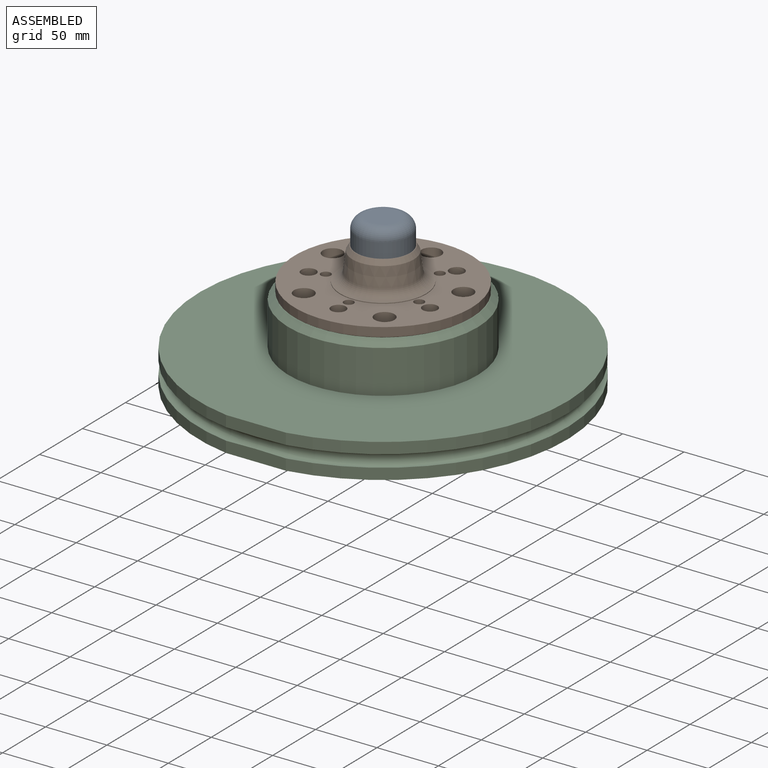
[diagram: assembled view]
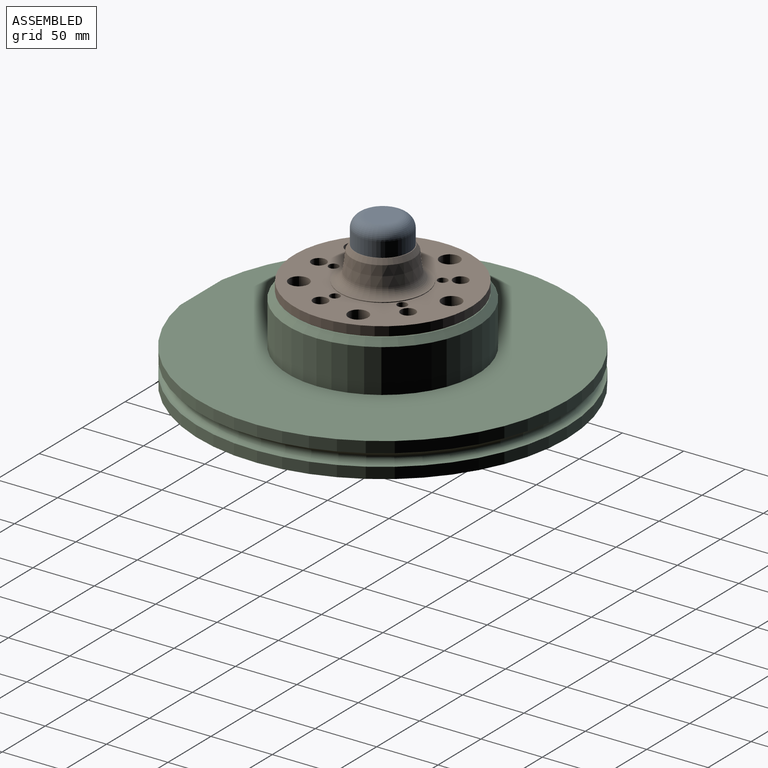
[diagram: assembled view, second angle]
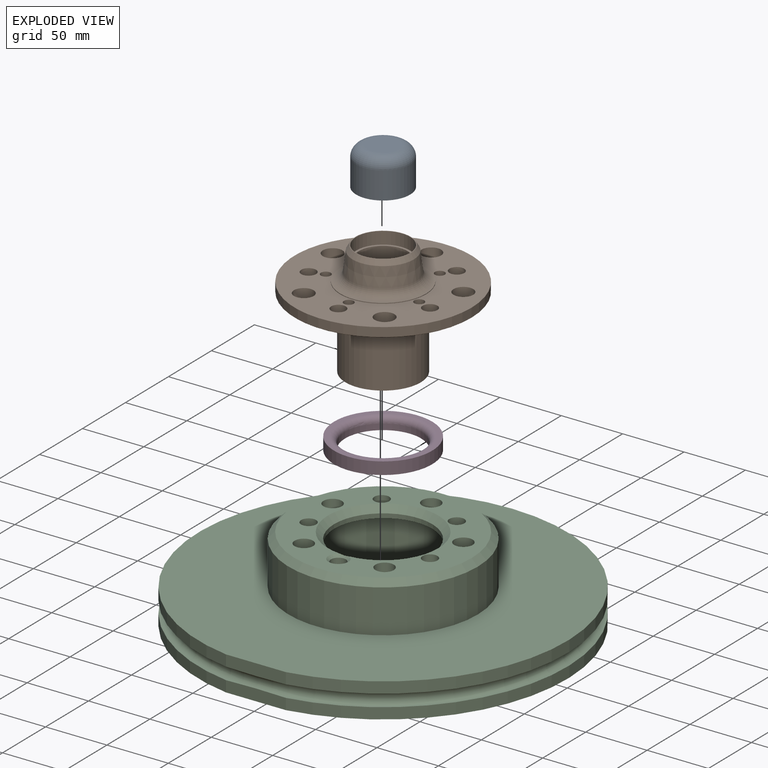
[diagram: exploded view]
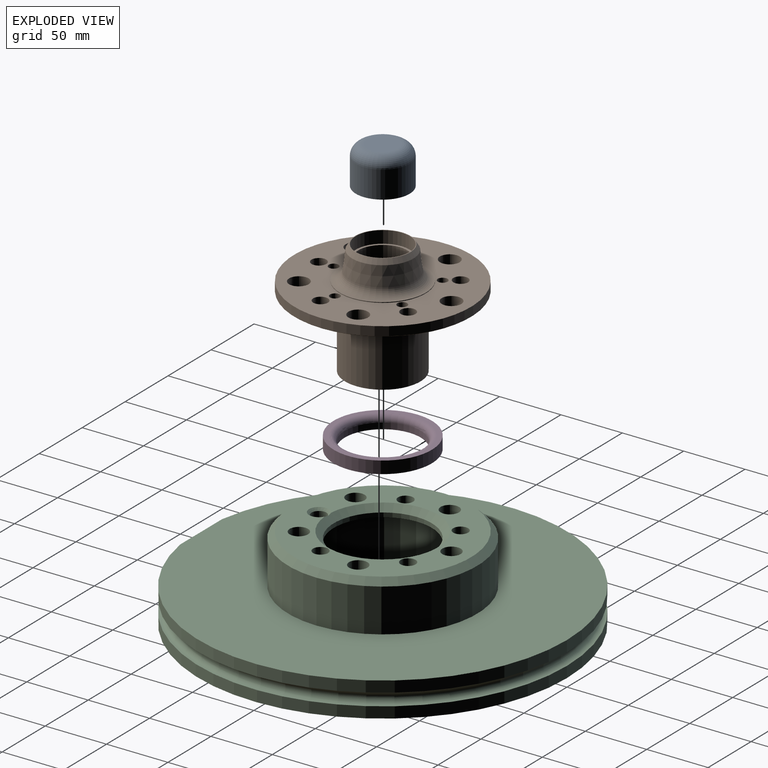
[diagram: exploded view, second angle]
ASSEMBLY  parts=4 mates=5
PART A: 7 faces, bbox 47.6x47.6x31 mm
  f0: torus R=13.99mm, axis (0,0,1), area 847.5mm2, adj f1,f6
  f1: cylinder r=18.99mm len=37.98mm, axis (0,0,1), area 2625mm2, adj f0,f2
  f2: plane 43.98x43.98mm, normal (0,0,-1), area 386.2mm2, adj f1,f3
  f3: cylinder r=21.99mm len=43.98mm, axis (0,0,1), area 3039.7mm2, adj f2,f4
  f4: torus R=12.99mm, axis (0,0,1), area 1662.8mm2, adj f3,f5
  f5: plane 25.98x25.98mm, normal (0,0,1), area 530.1mm2, adj f4
  f6: plane 27.98x27.98mm, normal (0,0,-1), area 614.9mm2, adj f0
PART B: 46 faces, bbox 144x144x93 mm
  f0: cylinder r=20mm len=40mm, axis (0,0,1), area 1218.9mm2, adj f38,f44
  f1: cone r=77mm half-angle=56.3deg, axis (0,0,1), area 539.9mm2, adj f37,f42
  f2: cylinder r=4mm len=8mm, axis (0,0,1), area 201.1mm2, adj f17,f42
  f3: cylinder r=4mm len=8mm, axis (0,0,1), area 201.1mm2, adj f17,f42
  f4: cylinder r=4mm len=8mm, axis (0,0,1), area 201.1mm2, adj f17,f42
  f5: cylinder r=4mm len=8mm, axis (0,0,1), area 201.1mm2, adj f17,f42
  f6: cylinder r=4mm len=8mm, axis (0,0,1), area 201.1mm2, adj f17,f42
  f7: cylinder r=8mm len=16mm, axis (0,0,1), area 402.1mm2, adj f17,f42
  f8: cylinder r=8mm len=16mm, axis (0,0,1), area 402.1mm2, adj f17,f42
  f9: cylinder r=8mm len=16mm, axis (0,0,1), area 402.1mm2, adj f17,f42
  f10: cylinder r=8mm len=16mm, axis (0,0,1), area 402.1mm2, adj f17,f42
  f11: cylinder r=8mm len=16mm, axis (0,0,1), area 402.1mm2, adj f17,f42
  f12: cylinder r=6mm len=12mm, axis (0,0,1), area 301.6mm2, adj f17,f42
  f13: cylinder r=6mm len=12mm, axis (0,0,1), area 301.6mm2, adj f17,f42
  f14: cylinder r=6mm len=12mm, axis (0,0,1), area 301.6mm2, adj f17,f42
  f15: cylinder r=6mm len=12mm, axis (0,0,1), area 301.6mm2, adj f17,f42
  f16: cylinder r=6mm len=12mm, axis (0,0,1), area 301.6mm2, adj f17,f42
  f17: plane 144x144mm, normal (0,0,1), area 10615.4mm2, adj f2,f3,f4,f5,f6,f7,f8,f9
  f18: cylinder r=17.5mm len=35mm, axis (0,0,1), area 1143.5mm2, adj f39,f40
  f19: plane 61.4x61.4mm, normal (0,0,-1), area 133.5mm2, adj f20,f36
  f20: cylinder r=30.7mm len=61.4mm, axis (0,0,1), area 8294.4mm2, adj f19,f21
  f21: plane 62x62mm, normal (0,0,-1), area 58.2mm2, adj f20,f22
  f22: cylinder r=31mm len=62mm, axis (0,0,1), area 1947.8mm2, adj f21,f43
  f23: cylinder r=35mm len=70mm, axis (0,0,1), area 110mm2, adj f17,f24
  f24: torus R=35mm, axis (0,0,1), area 2202mm2, adj f23,f25
  f25: cone r=25mm half-angle=7.4deg, axis (0,0,-1), area 2547.9mm2, adj f24,f26
  f26: cone r=22.5mm half-angle=32deg, axis (0,0,-1), area 703.9mm2, adj f25,f27
  f27: plane 45x45mm, normal (0,0,1), area 69.9mm2, adj f26,f35
  f28: plane 39.4x39.4mm, normal (0,0,1), area 223.8mm2, adj f38,f39
  f29: plane 58x58mm, normal (0,0,-1), area 678.6mm2, adj f30,f32
  f30: cylinder r=29mm len=58mm, axis (0,0,-1), area 1731mm2, adj f29,f36
  f31: plane 50x50mm, normal (0,0,-1), area 373.1mm2, adj f32,f34
  f32: cylinder r=25mm len=50mm, axis (0,0,-1), area 1727.9mm2, adj f29,f31
  f33: plane 44.4x44.4mm, normal (0,0,-1), area 552.9mm2, adj f40,f41
  f34: cylinder r=22.5mm len=45mm, axis (0,0,-1), area 5753.8mm2, adj f31,f41
  f35: cone r=20mm half-angle=45deg, axis (0,0,1), area 2mm2, adj f27,f45
  f36: cone r=29mm half-angle=63.4deg, axis (0,0,-1), area 207.2mm2, adj f19,f30
  f37: cylinder r=72mm len=144mm, axis (0,0,1), area 3317.5mm2, adj f1,f17
  f38: cone r=19.7mm half-angle=45deg, axis (0,0,1), area 52.9mm2, adj f0,f28
  f39: cone r=17.5mm half-angle=45deg, axis (0,0,1), area 47.1mm2, adj f18,f28
  f40: cone r=17.8mm half-angle=45deg, axis (0,0,-1), area 47.1mm2, adj f18,f33
  f41: cone r=22.2mm half-angle=45deg, axis (0,0,-1), area 59.6mm2, adj f33,f34
  f42: plane 142x142mm, normal (0,0,-1), area 9943.1mm2, adj f1,f2,f3,f4,f5,f6,f7,f8
  f43: torus R=36mm, axis (0,0,-1), area 1619.4mm2, adj f22,f42
  f44: plane 43.98x43.98mm, normal (0,0,1), area 262.5mm2, adj f0,f45
  f45: cylinder r=21.99mm len=43.98mm, axis (0,0,1), area 1380.3mm2, adj f35,f44
PART C: 27 faces, bbox 332.4x332.4x68.2 mm
  f0: cylinder r=150mm len=300mm, axis (0,0,-1), area 8040.9mm2, adj f3,f4,f26
  f1: cylinder r=150mm len=300mm, axis (0,0,-1), area 8040.9mm2, adj f2,f4,f25
  f2: plane 300x298mm, normal (0,0,1), area 51945.7mm2, adj f1,f6,f25
  f3: plane 300x298mm, normal (0,0,-1), area 45596.1mm2, adj f0,f11,f26
  f4: torus R=150mm, axis (0,0,-1), area 14357.3mm2, adj f0,f1,f25,f26
  f5: cylinder r=72.5mm len=145mm, axis (0,0,-1), area 22639.9mm2, adj f8,f10
  f6: cylinder r=77.1mm len=154.2mm, axis (0,0,-1), area 17052.1mm2, adj f2,f12
  f7: plane 144.2x144.2mm, normal (0,0,1), area 8417.9mm2, adj f12,f13,f14,f15,f16,f18,f19,f20
  f8: plane 145x145mm, normal (0,0,-1), area 10018.4mm2, adj f5,f9,f14,f15,f16,f17,f18,f19
  f9: cylinder r=40mm len=80mm, axis (0,0,1), area 879.6mm2, adj f8,f13
  f10: plane 178.5x178.5mm, normal (0,0,-1), area 8511.6mm2, adj f5,f11
  f11: cylinder r=89.25mm len=178.5mm, axis (0,0,-1), area 5607.7mm2, adj f3,f10
  f12: cone r=72.1mm half-angle=45deg, axis (0,0,-1), area 3314.4mm2, adj f6,f7
  f13: cone r=40mm half-angle=45deg, axis (0,0,1), area 1884.3mm2, adj f7,f9,f24
  f14: cylinder r=6.1mm len=12.2mm, axis (0,0,1), area 325.8mm2, adj f7,f8
  f15: cylinder r=6.1mm len=12.2mm, axis (0,0,1), area 325.8mm2, adj f7,f8
  f16: cylinder r=6.1mm len=12.2mm, axis (0,0,1), area 325.8mm2, adj f7,f8
  f17: cylinder r=6.1mm len=12.2mm, axis (0,0,1), area 249.1mm2, adj f8,f24
  f18: cylinder r=7.5mm len=15mm, axis (0,0,1), area 400.6mm2, adj f7,f8
  f19: cylinder r=7.5mm len=15mm, axis (0,0,1), area 400.6mm2, adj f7,f8
  f20: cylinder r=7.5mm len=15mm, axis (0,0,1), area 400.6mm2, adj f7,f8
  f21: cylinder r=7.5mm len=15mm, axis (0,0,1), area 400.6mm2, adj f7,f8
  f22: cylinder r=6.1mm len=12.2mm, axis (0,0,1), area 325.8mm2, adj f7,f8
  f23: cylinder r=7.5mm len=15mm, axis (0,0,1), area 400.6mm2, adj f7,f8
  f24: cone r=6.1mm half-angle=45deg, axis (0,0,1), area 122.2mm2, adj f7,f13,f17
  f25: plane 48.83x9.42mm, normal (0,-1,0), area 450.2mm2, adj f1,f2,f4
  f26: plane 48.83x9.42mm, normal (0,-1,0), area 450.2mm2, adj f0,f3,f4
PART D: 5 faces, bbox 85.6x85.6x10 mm
  f0: plane 80x80mm, normal (0,0,-1), area 2007.5mm2, adj f2,f3
  f1: plane 80x80mm, normal (0,0,1), area 955mm2, adj f2,f4
  f2: cylinder r=40mm len=80mm, axis (0,0,1), area 2513.3mm2, adj f0,f1
  f3: cylinder r=31mm len=62mm, axis (0,0,1), area 973.9mm2, adj f0,f4
  f4: torus R=36mm, axis (0,0,-1), area 1619.4mm2, adj f1,f3
PLACE A t=(0,0,-6)mm
PLACE B at identity fixed
PLACE C t=(0,0,-66.2)mm
PLACE D at identity fixed
MATE planar A.f0 <-> B.f45  axis (0,0,-1) through (0,0,27)mm
MATE cylindrical A.f1 <-> B.f45  axis (0,0,1) through (0,0,27)mm
MATE planar C.f9 <-> B.f1  axis (0,0,1) through (0,0,2)mm
MATE slider C.f23 <-> B.f11  axis (0,0,1) through (0,56,-6.5)mm
MATE cylindrical C.f9 <-> D.f2  axis (0,0,1) through (0,0,-3)mm
